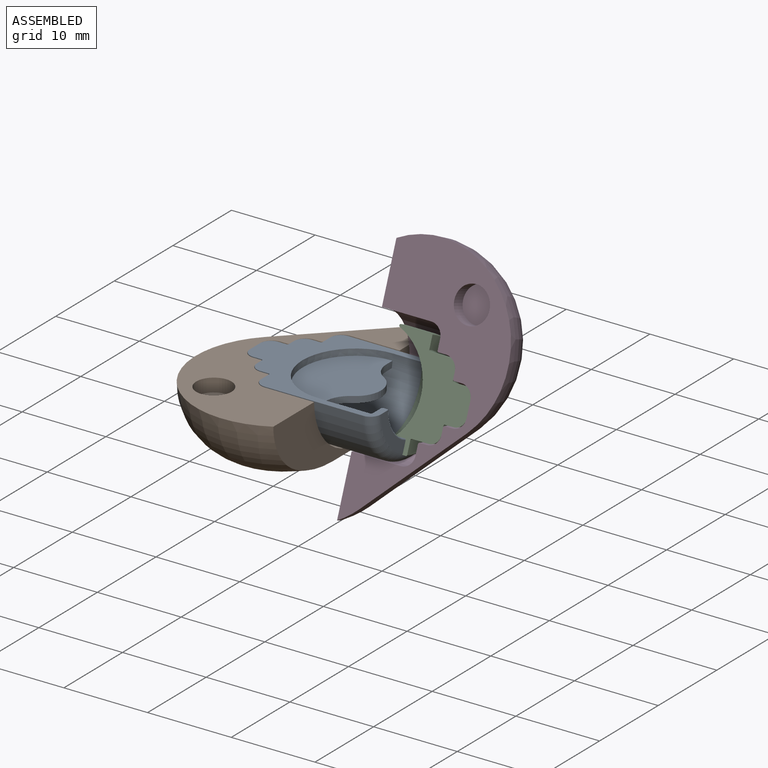
[diagram: assembled view]
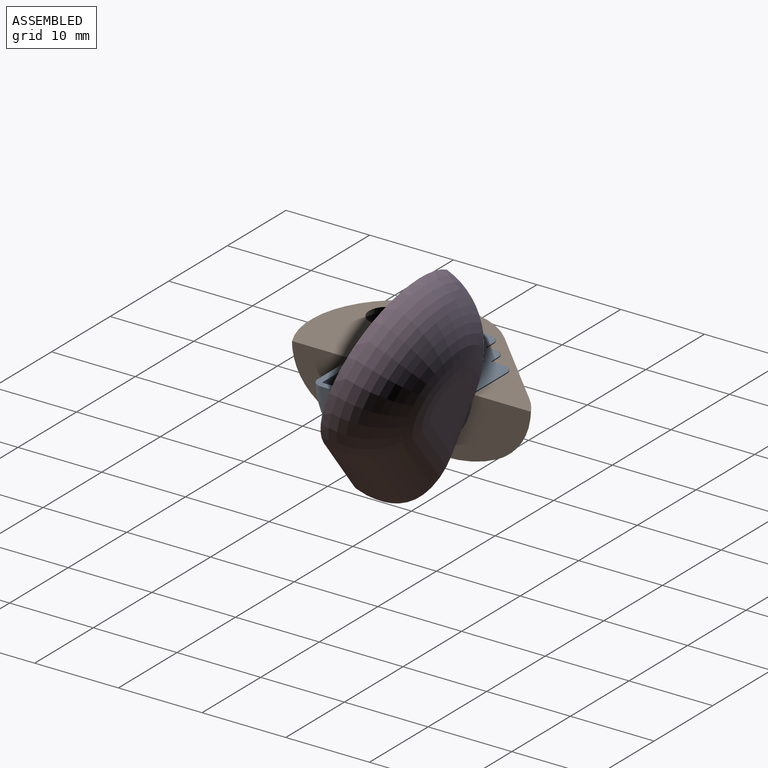
[diagram: assembled view, second angle]
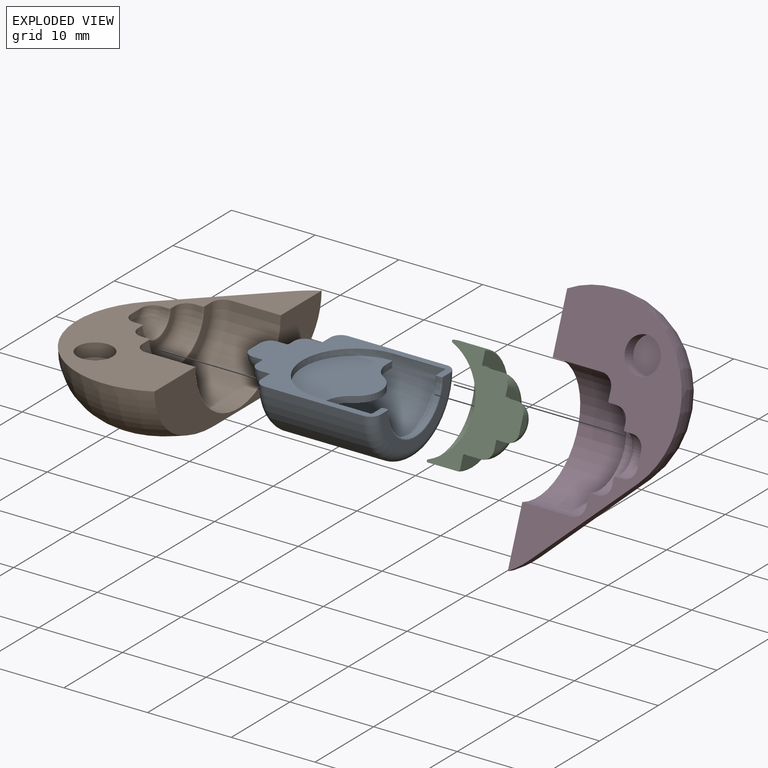
[diagram: exploded view]
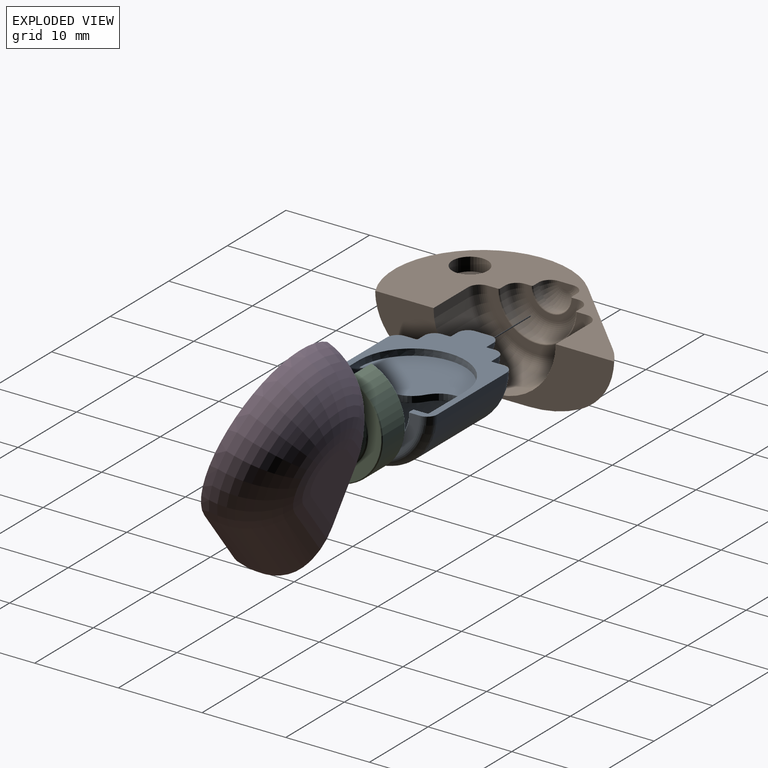
[diagram: exploded view, second angle]
ASSEMBLY  parts=4 mates=3
PART A: 29 faces, bbox 19.2x15.5x7.7 mm
  f0: sphere r=6.35mm, area 96.2mm2, adj f4,f24
  f1: plane 19.15x14.29mm, normal (0,0,1), area 82.2mm2, adj f2,f3,f4,f5,f6,f7,f8,f9
  f2: cylinder r=4.56mm len=9.12mm, axis (-1,0,0), area 7.1mm2, adj f1,f17,f21
  f3: sphere r=6.35mm, area 15.2mm2, adj f1,f4,f25
  f4: cylinder r=6.35mm len=12.69mm, axis (-1,0,0), area 123.5mm2, adj f0,f1,f3,f20,f22,f23
  f5: plane 12.39x6.19mm, normal (-1,0,0), area 25.4mm2, adj f1,f20,f21
  f6: plane 11.8x5.9mm, normal (1,0,0), area 19.8mm2, adj f1,f16,f17
  f7: cylinder r=7.14mm len=14.29mm, axis (1,0,0), area 264.9mm2, adj f1,f8,f16
  f8: torus R=5.9mm, axis (1,0,0), area 41mm2, adj f1,f7,f9
  f9: plane 11.8x5.9mm, normal (-1,0,0), area 22.1mm2, adj f1,f8,f18
  f10: cylinder r=4.41mm len=8.82mm, axis (1,0,0), area 14.4mm2, adj f1,f11,f18
  f11: torus R=3.17mm, axis (1,0,0), area 24.2mm2, adj f1,f10,f12
  f12: plane 6.33x3.17mm, normal (-1,0,0), area 7.6mm2, adj f1,f11,f19
  f13: cylinder r=2.13mm len=4.26mm, axis (1,0,0), area 6.9mm2, adj f1,f14,f19
  f14: torus R=0.89mm, axis (1,0,0), area 10.3mm2, adj f1,f13,f15
  f15: plane 1.77x0.89mm, normal (-1,0,0), area 1.2mm2, adj f1,f14
  f16: torus R=5.9mm, axis (1,0,0), area 41mm2, adj f1,f6,f7
  f17: torus R=4.71mm, axis (1,0,0), area 3.5mm2, adj f1,f2,f6
  f18: torus R=4.56mm, axis (1,0,0), area 3.3mm2, adj f1,f9,f10
  f19: torus R=2.28mm, axis (-1,0,0), area 1.6mm2, adj f1,f12,f13
  f20: torus R=6.19mm, axis (1,0,0), area 4.7mm2, adj f1,f4,f5
  f21: torus R=4.71mm, axis (1,0,0), area 3.5mm2, adj f1,f2,f5
  f22: plane 1.04x0.76mm, normal (1,0,0), area 0.7mm2, adj f4,f24,f25,f27
  f23: plane 1.04x0.76mm, normal (1,0,0), area 0.7mm2, adj f4,f24,f25,f28
  f24: plane 12.32x9.2mm, normal (0,0,-1), area 75.6mm2, adj f0,f22,f23,f26,f27,f28
  f25: plane 12.6x9.34mm, normal (0,0,1), area 78.4mm2, adj f3,f22,f23,f26,f27,f28
  f26: cylinder r=3.04mm len=5.27mm, axis (0,0,1), area 4.8mm2, adj f24,f25,f27,f28
  f27: cylinder r=3.04mm len=2.63mm, axis (0,0,1), area 2.4mm2, adj f22,f24,f25,f26
  f28: cylinder r=3.04mm len=2.63mm, axis (0,0,1), area 2.4mm2, adj f23,f24,f25,f26
PART B: 20 faces, bbox 19x30.1x8.1 mm
  f0: plane 29.86x15.65mm, normal (0,0,1), area 174.3mm2, adj f3,f4,f5,f6,f7,f8,f9,f10
  f1: cylinder r=7.6mm len=6.21mm, axis (-0.71,-0.7,0), area 10.3mm2, adj f2,f5,f6
  f2: plane 12.09x8.05mm, normal (0,0,-1), area 55.3mm2, adj f1,f3,f5,f6
  f3: cylinder r=7.6mm len=15.62mm, axis (0.71,0.7,0), area 162.5mm2, adj f0,f2,f4,f5,f6
  f4: torus R=2.9mm, axis (0,0,1), area 13.9mm2, adj f0,f3,f6
  f5: torus R=2.9mm, axis (0,0,1), area 276.6mm2, adj f0,f1,f2,f3,f6
  f6: plane 28.74x7.83mm, normal (1,0,0), area 102.2mm2, adj f0,f1,f2,f3,f4,f5,f7
  f7: cylinder r=7.3mm len=14.59mm, axis (1,0,0), area 135.3mm2, adj f0,f6,f8
  f8: torus R=5.9mm, axis (1,0,0), area 46.7mm2, adj f0,f7,f9
  f9: plane 11.8x5.9mm, normal (1,0,0), area 19.8mm2, adj f0,f8,f17
  f10: cylinder r=4.56mm len=9.12mm, axis (1,0,0), area 12.7mm2, adj f0,f11,f17
  f11: torus R=3.17mm, axis (1,0,0), area 27.9mm2, adj f0,f10,f12
  f12: plane 6.33x3.17mm, normal (1,0,0), area 6.5mm2, adj f0,f11,f16
  f13: cylinder r=2.28mm len=4.56mm, axis (1,0,0), area 6.3mm2, adj f0,f14,f16
  f14: torus R=0.89mm, axis (1,0,0), area 12.2mm2, adj f0,f13,f15
  f15: plane 1.77x0.89mm, normal (1,0,0), area 1.2mm2, adj f0,f14
  f16: torus R=2.43mm, axis (-1,0,0), area 1.8mm2, adj f0,f12,f13
  f17: torus R=4.71mm, axis (1,0,0), area 3.5mm2, adj f0,f9,f10
  f18: cylinder r=2.1mm len=4.2mm, axis (0,0,1), area 21.1mm2, adj f0,f19
  f19: plane 4.2x4.2mm, normal (0,0,1), area 13.9mm2, adj f18
PART C: 14 faces, bbox 9.8x13.4x6.7 mm
  f0: sphere r=6.35mm, area 80mm2, adj f1,f11
  f1: plane 12.39x9.77mm, normal (0,0,1), area 52.4mm2, adj f0,f2,f3,f4,f5,f6,f7,f8
  f2: cylinder r=6.19mm len=12.39mm, axis (-1,0,0), area 71mm2, adj f1,f11,f13
  f3: plane 12.08x6.04mm, normal (1,0,0), area 24.7mm2, adj f1,f12,f13
  f4: cylinder r=4.41mm len=8.82mm, axis (-1,0,0), area 27.5mm2, adj f1,f5,f12
  f5: torus R=3.17mm, axis (1,0,0), area 24.2mm2, adj f1,f4,f6
  f6: plane 6.33x3.17mm, normal (1,0,0), area 7.6mm2, adj f1,f5,f10
  f7: cylinder r=2.13mm len=4.26mm, axis (1,0,0), area 6.9mm2, adj f1,f8,f10
  f8: torus R=0.89mm, axis (1,0,0), area 10.3mm2, adj f1,f7,f9
  f9: plane 1.77x0.89mm, normal (1,0,0), area 1.2mm2, adj f1,f8
  f10: torus R=2.28mm, axis (-1,0,0), area 1.6mm2, adj f1,f6,f7
  f11: torus R=6.04mm, axis (-1,0,0), area 8mm2, adj f0,f1,f2
  f12: torus R=4.56mm, axis (1,0,0), area 3.3mm2, adj f1,f3,f4
  f13: torus R=6.04mm, axis (1,0,0), area 4.6mm2, adj f1,f2,f3
PART D: 20 faces, bbox 19x30.1x8.1 mm
  f0: plane 29.86x15.65mm, normal (0,0,1), area 174.3mm2, adj f3,f4,f5,f6,f7,f8,f9,f10
  f1: cylinder r=7.6mm len=6.17mm, axis (0.71,0.7,0), area 10.1mm2, adj f2,f5,f6
  f2: plane 12.09x8.05mm, normal (0,0,-1), area 55.3mm2, adj f1,f3,f5,f6
  f3: cylinder r=7.6mm len=15.68mm, axis (-0.71,-0.7,0), area 163.2mm2, adj f0,f2,f4,f5,f6
  f4: torus R=2.9mm, axis (0,0,1), area 13.6mm2, adj f0,f3,f6
  f5: torus R=2.9mm, axis (0,0,1), area 276.2mm2, adj f0,f1,f2,f3,f6
  f6: plane 28.74x7.83mm, normal (-1,0,0), area 102.2mm2, adj f0,f1,f2,f3,f4,f5,f7
  f7: cylinder r=7.3mm len=14.59mm, axis (1,0,0), area 135.3mm2, adj f0,f6,f8
  f8: torus R=5.9mm, axis (1,0,0), area 46.7mm2, adj f0,f7,f9
  f9: plane 11.8x5.9mm, normal (-1,0,0), area 19.8mm2, adj f0,f8,f17
  f10: cylinder r=4.56mm len=9.12mm, axis (1,0,0), area 12.7mm2, adj f0,f11,f17
  f11: torus R=3.17mm, axis (1,0,0), area 27.9mm2, adj f0,f10,f12
  f12: plane 6.33x3.17mm, normal (-1,0,0), area 6.5mm2, adj f0,f11,f16
  f13: cylinder r=2.28mm len=4.56mm, axis (1,0,0), area 6.3mm2, adj f0,f14,f16
  f14: torus R=0.89mm, axis (1,0,0), area 12.2mm2, adj f0,f13,f15
  f15: plane 1.77x0.89mm, normal (-1,0,0), area 1.2mm2, adj f0,f14
  f16: torus R=2.43mm, axis (-1,0,0), area 1.8mm2, adj f0,f12,f13
  f17: torus R=4.71mm, axis (1,0,0), area 3.5mm2, adj f0,f9,f10
  f18: cylinder r=2.1mm len=4.2mm, axis (0,0,1), area 21.1mm2, adj f0,f19
  f19: plane 4.2x4.2mm, normal (0,0,1), area 13.9mm2, adj f18
PLACE A t=(-0.15,0,0)mm
PLACE B at identity fixed
PLACE C rot(axis=(1,0,0),69.2deg) t=(1.33,0,0)mm
PLACE D rot(axis=(1,0,0),69.2deg) t=(1.18,0,0)mm
MATE fastened D.f15 <-> C.f9  axis (-1,0,0) through (13.34,0.35,-0.13)mm
MATE fastened A.f15 <-> B.f15  axis (-1,0,0) through (-12.16,0,-0.38)mm
MATE revolute A.f2 <-> C.f2  axis (-1,0,0) through (2.95,0,0)mm
